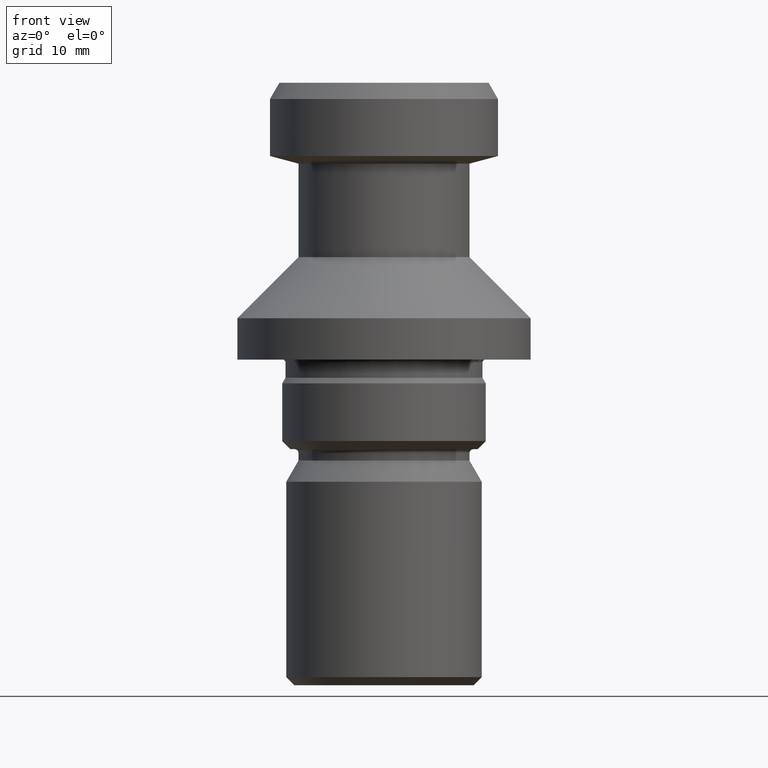
[diagram: clean part render]
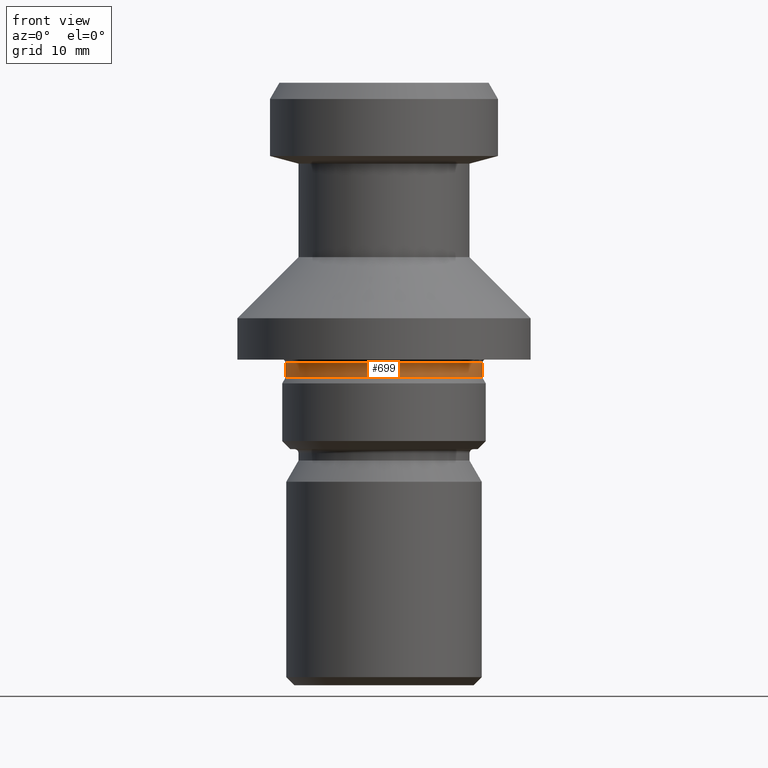
[diagram: same view with one face highlighted and labeled with its STEP entity id]
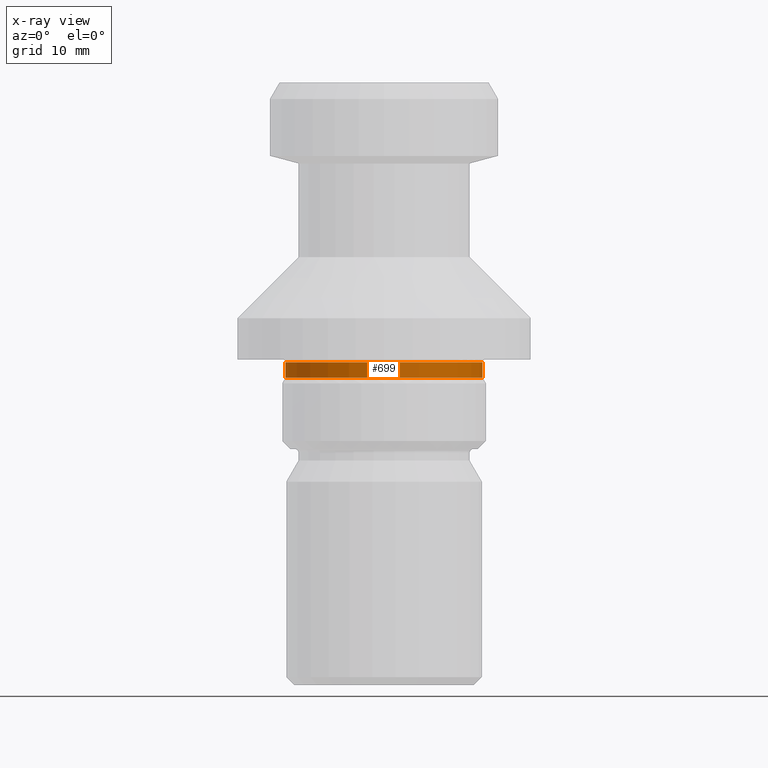
[diagram: x-ray of the same camera — body ghosted, the highlighted face saturated]
A machine part, front view. The second image highlights one B-rep face of the part: STEP entity #699.
The next image is the same camera in x-ray: the body ghosted, the highlighted face saturated — about 0% of this face is hidden behind the body in this view.
In plain terms, the highlighted cylindrical surface (partial cylindrical patch) has radius 12.1 mm, axis along (-0, -0, 1).
Its self-contained STEP definition (entity closure, byte-faithful):
#42 = DIRECTION ( 'NONE',  ( -0.0000000000000000000, -0.0000000000000000000, 1.000000000000000000 ) ) ;
#77 = CIRCLE ( 'NONE', #835, 12.10000000000000300 ) ;
#88 = CYLINDRICAL_SURFACE ( 'NONE', #160, 12.10000000000000300 ) ;
#109 = CARTESIAN_POINT ( 'NONE',  ( 12.10000000000000100, 1.506315562951244600E-015, -36.23717967697246000 ) ) ;
#157 = VERTEX_POINT ( 'NONE', #209 ) ;
#158 = EDGE_CURVE ( 'NONE', #1036, #157, #356, .T. ) ;
#160 = AXIS2_PLACEMENT_3D ( 'NONE', #1021, #163, #370 ) ;
#163 = DIRECTION ( 'NONE',  ( -0.0000000000000000000, -0.0000000000000000000, 1.000000000000000000 ) ) ;
#171 = CARTESIAN_POINT ( 'NONE',  ( 0.0000000000000000000, 0.0000000000000000000, -36.23717967697246000 ) ) ;
#209 = CARTESIAN_POINT ( 'NONE',  ( -12.10000000000000300, 1.481822626968297700E-015, -34.34883009897343700 ) ) ;
#236 = AXIS2_PLACEMENT_3D ( 'NONE', #171, #42, #255 ) ;
#243 = EDGE_LOOP ( 'NONE', ( #830, #303, #651, #855 ) ) ;
#255 = DIRECTION ( 'NONE',  ( 1.000000000000000000, 0.0000000000000000000, 0.0000000000000000000 ) ) ;
#278 = DIRECTION ( 'NONE',  ( -0.0000000000000000000, -0.0000000000000000000, 1.000000000000000000 ) ) ;
#303 = ORIENTED_EDGE ( 'NONE', *, *, #728, .T. ) ;
#334 = VECTOR ( 'NONE', #901, 1000.000000000000000 ) ;
#354 = CARTESIAN_POINT ( 'NONE',  ( -12.10000000000000100, 0.0000000000000000000, -36.23717967697246000 ) ) ;
#356 = LINE ( 'NONE', #393, #334 ) ;
#370 = DIRECTION ( 'NONE',  ( 1.000000000000000000, 0.0000000000000000000, 0.0000000000000000000 ) ) ;
#393 = CARTESIAN_POINT ( 'NONE',  ( -12.10000000000000300, 1.481822626968297700E-015, 0.0000000000000000000 ) ) ;
#495 = EDGE_CURVE ( 'NONE', #1011, #798, #921, .T. ) ;
#499 = VECTOR ( 'NONE', #554, 1000.000000000000000 ) ;
#536 = CARTESIAN_POINT ( 'NONE',  ( 12.10000000000000300, 0.0000000000000000000, 0.0000000000000000000 ) ) ;
#540 = EDGE_CURVE ( 'NONE', #157, #798, #77, .T. ) ;
#554 = DIRECTION ( 'NONE',  ( -0.0000000000000000000, -0.0000000000000000000, 1.000000000000000000 ) ) ;
#651 = ORIENTED_EDGE ( 'NONE', *, *, #495, .T. ) ;
#699 = ADVANCED_FACE ( 'NONE', ( #941 ), #88, .T. ) ;
#728 = EDGE_CURVE ( 'NONE', #1036, #1011, #732, .T. ) ;
#732 = CIRCLE ( 'NONE', #236, 12.10000000000000100 ) ;
#785 = CARTESIAN_POINT ( 'NONE',  ( 12.10000000000000300, 0.0000000000000000000, -34.34883009897343700 ) ) ;
#798 = VERTEX_POINT ( 'NONE', #785 ) ;
#830 = ORIENTED_EDGE ( 'NONE', *, *, #158, .F. ) ;
#835 = AXIS2_PLACEMENT_3D ( 'NONE', #933, #278, #1017 ) ;
#855 = ORIENTED_EDGE ( 'NONE', *, *, #540, .F. ) ;
#901 = DIRECTION ( 'NONE',  ( -0.0000000000000000000, -0.0000000000000000000, 1.000000000000000000 ) ) ;
#921 = LINE ( 'NONE', #536, #499 ) ;
#933 = CARTESIAN_POINT ( 'NONE',  ( 0.0000000000000000000, 0.0000000000000000000, -34.34883009897343700 ) ) ;
#941 = FACE_OUTER_BOUND ( 'NONE', #243, .T. ) ;
#1011 = VERTEX_POINT ( 'NONE', #109 ) ;
#1017 = DIRECTION ( 'NONE',  ( 1.000000000000000000, 0.0000000000000000000, 0.0000000000000000000 ) ) ;
#1021 = CARTESIAN_POINT ( 'NONE',  ( 0.0000000000000000000, 0.0000000000000000000, 0.0000000000000000000 ) ) ;
#1036 = VERTEX_POINT ( 'NONE', #354 ) ;